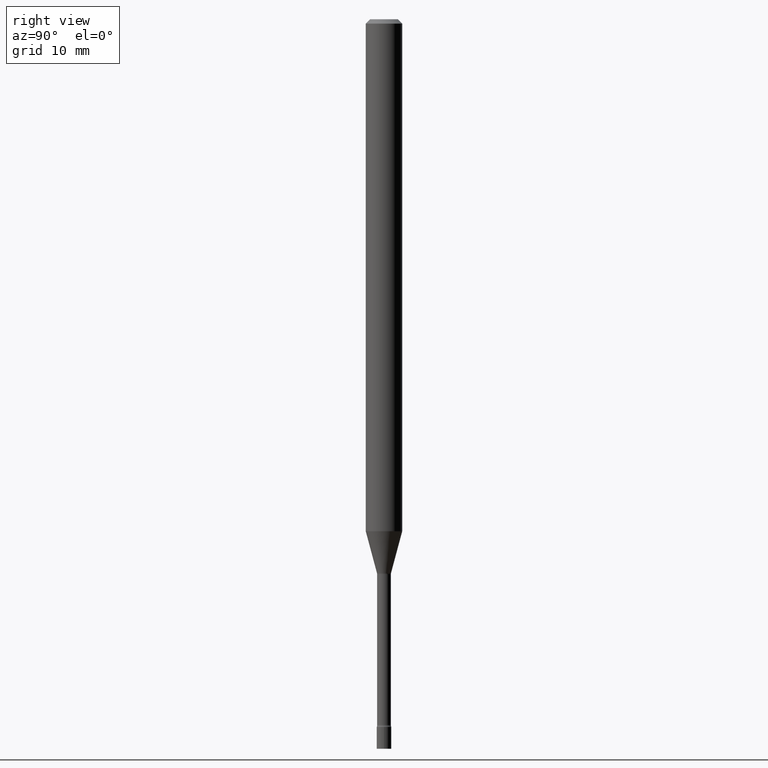
[diagram: clean part render]
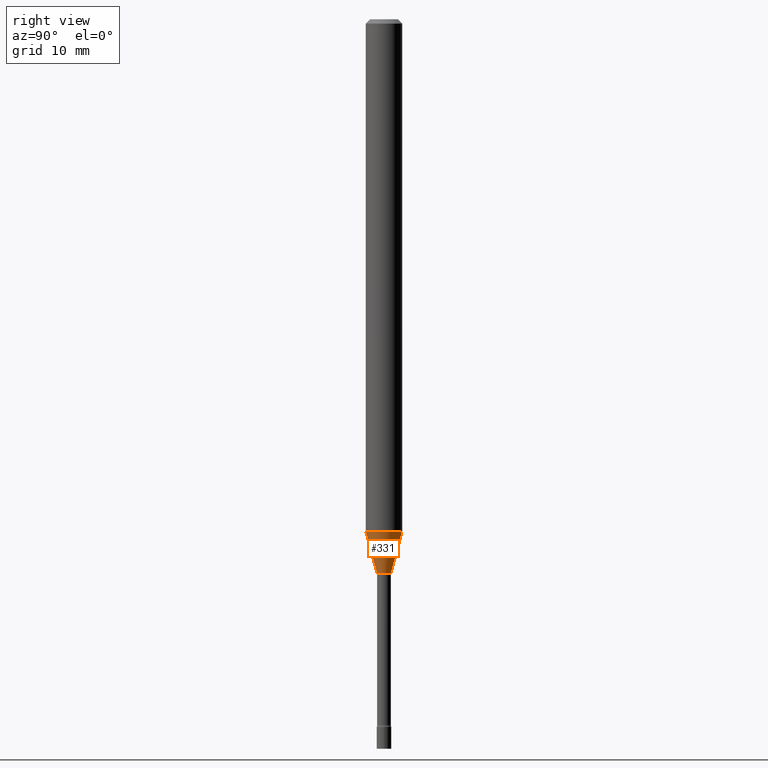
[diagram: same view with one face highlighted and labeled with its STEP entity id]
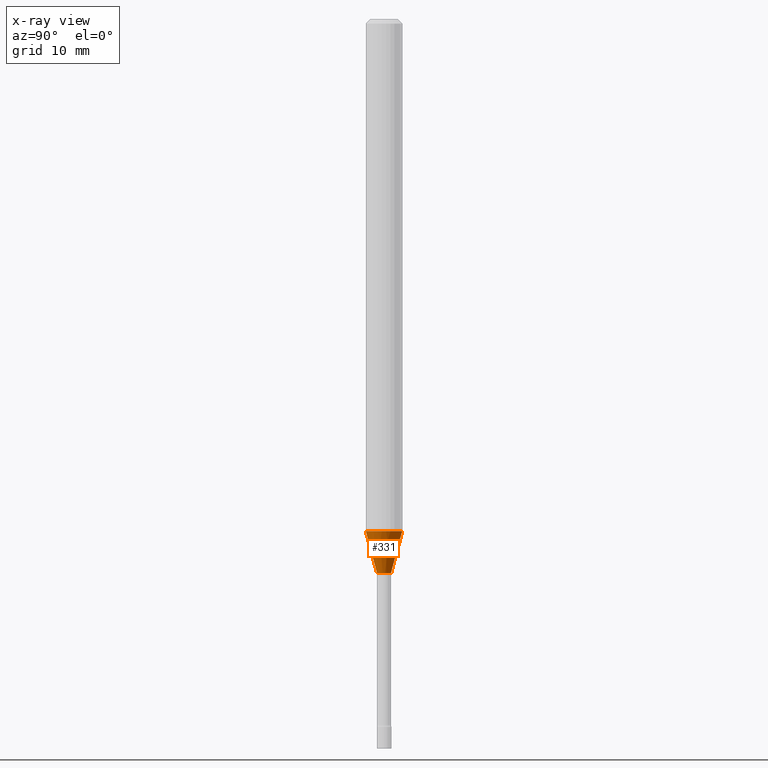
[diagram: x-ray of the same camera — body ghosted, the highlighted face saturated]
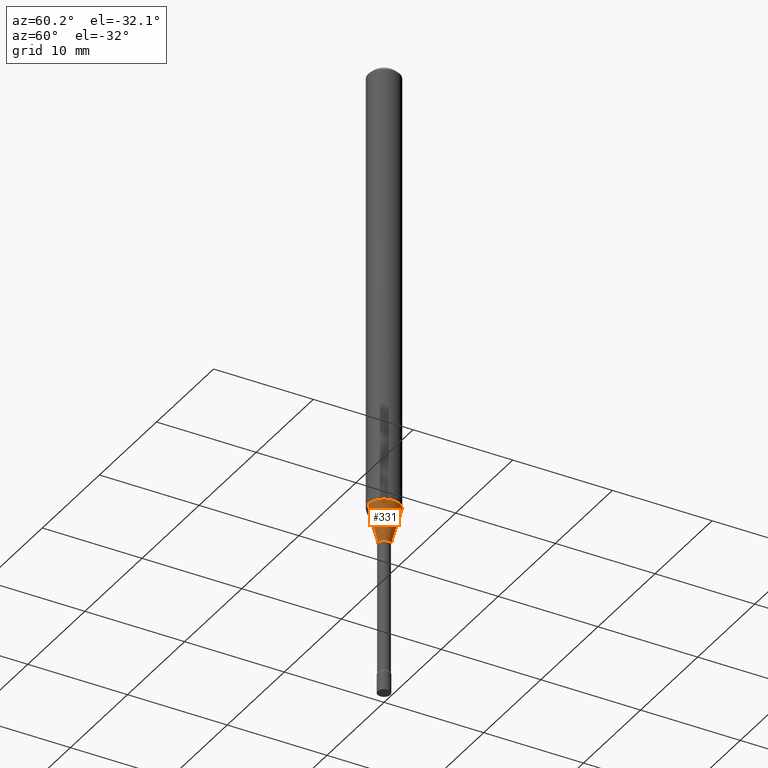
[diagram: same view with one face highlighted and labeled with its STEP entity id]
A machine part, right view. The second image highlights one B-rep face of the part: STEP entity #331.
The next image is the same camera in x-ray: the body ghosted, the highlighted face saturated — about 0% of this face is hidden behind the body in this view.
A second angle (auxiliary view) of the same face is appended — the face is thin or edge-on in the first view.
In plain terms, the highlighted conical surface has half-angle 15 deg.
Its self-contained STEP definition (entity closure, byte-faithful):
#8 = VERTEX_POINT ( 'NONE', #197 ) ;
#13 = VERTEX_POINT ( 'NONE', #268 ) ;
#18 = CARTESIAN_POINT ( 'NONE',  ( -1.676687031750274462E-16, -0.02401111260567061895, -1.898092501787273401 ) ) ;
#31 = ORIENTED_EDGE ( 'NONE', *, *, #60, .F. ) ;
#33 = LINE ( 'NONE', #450, #45 ) ;
#38 = DIRECTION ( 'NONE',  ( -2.445461215800332779E-29, 3.491492208706202500E-15, 1.000000000000000000 ) ) ;
#45 = VECTOR ( 'NONE', #520, 39.37007874015748143 ) ;
#60 = EDGE_CURVE ( 'NONE', #397, #411, #260, .T. ) ;
#108 = CONICAL_SURFACE ( 'NONE', #413, 0.02401111260566398883, 0.2617993877991502960 ) ;
#121 = CARTESIAN_POINT ( 'NONE',  ( 4.290439475313700951E-29, -6.125648570174013165E-15, -1.754450018504814635 ) ) ;
#123 = ORIENTED_EDGE ( 'NONE', *, *, #423, .F. ) ;
#144 = DIRECTION ( 'NONE',  ( -1.807323732225330534E-15, -0.2588190451025182415, 0.9659258262890689783 ) ) ;
#150 = EDGE_LOOP ( 'NONE', ( #448, #354, #123, #31 ) ) ;
#163 = AXIS2_PLACEMENT_3D ( 'NONE', #121, #283, #384 ) ;
#197 = CARTESIAN_POINT ( 'NONE',  ( 3.073492131224375317E-16, 0.02401111260565735525, -1.898092501787273401 ) ) ;
#200 = FACE_OUTER_BOUND ( 'NONE', #150, .T. ) ;
#258 = EDGE_CURVE ( 'NONE', #8, #13, #33, .T. ) ;
#260 = LINE ( 'NONE', #18, #424 ) ;
#268 = CARTESIAN_POINT ( 'NONE',  ( 4.440892098501052147E-16, 0.06249999999999384520, -1.754450018504814857 ) ) ;
#281 = DIRECTION ( 'NONE',  ( -6.982962677686265133E-15, -1.000000000000000000, 0.000000000000000000 ) ) ;
#283 = DIRECTION ( 'NONE',  ( -2.445461215800332779E-29, 3.491492208706202500E-15, 1.000000000000000000 ) ) ;
#289 = CIRCLE ( 'NONE', #163, 0.06250000000000000000 ) ;
#290 = CARTESIAN_POINT ( 'NONE',  ( -4.364351673553489230E-16, -0.06250000000000614786, -1.754450018504814190 ) ) ;
#321 = CARTESIAN_POINT ( 'NONE',  ( 4.641711597122200589E-29, -6.627175181393928875E-15, -1.898092501787273401 ) ) ;
#331 = ADVANCED_FACE ( 'NONE', ( #200 ), #108, .T. ) ;
#354 = ORIENTED_EDGE ( 'NONE', *, *, #258, .T. ) ;
#358 = DIRECTION ( 'NONE',  ( -6.982962677686265133E-15, -1.000000000000000000, 0.000000000000000000 ) ) ;
#360 = EDGE_CURVE ( 'NONE', #397, #8, #460, .T. ) ;
#384 = DIRECTION ( 'NONE',  ( -6.982962677686265922E-15, -1.000000000000000000, 4.370956789862821150E-15 ) ) ;
#397 = VERTEX_POINT ( 'NONE', #487 ) ;
#410 = DIRECTION ( 'NONE',  ( -2.445461215800332779E-29, 3.491492208706202500E-15, 1.000000000000000000 ) ) ;
#411 = VERTEX_POINT ( 'NONE', #290 ) ;
#413 = AXIS2_PLACEMENT_3D ( 'NONE', #452, #410, #281 ) ;
#423 = EDGE_CURVE ( 'NONE', #411, #13, #289, .T. ) ;
#424 = VECTOR ( 'NONE', #144, 39.37007874015748143 ) ;
#436 = AXIS2_PLACEMENT_3D ( 'NONE', #321, #38, #358 ) ;
#448 = ORIENTED_EDGE ( 'NONE', *, *, #360, .T. ) ;
#450 = CARTESIAN_POINT ( 'NONE',  ( 1.706092163947695529E-16, 0.02401111260565735872, -1.898092501787273401 ) ) ;
#452 = CARTESIAN_POINT ( 'NONE',  ( 4.641711597122200589E-29, -6.627175181393928875E-15, -1.898092501787273401 ) ) ;
#460 = CIRCLE ( 'NONE', #436, 0.02401111260566398883 ) ;
#487 = CARTESIAN_POINT ( 'NONE',  ( -1.676687031750274462E-16, -0.02401111260567061895, -1.898092501787273401 ) ) ;
#520 = DIRECTION ( 'NONE',  ( 1.839019923739600710E-15, 0.2588190451025250138, 0.9659258262890670910 ) ) ;